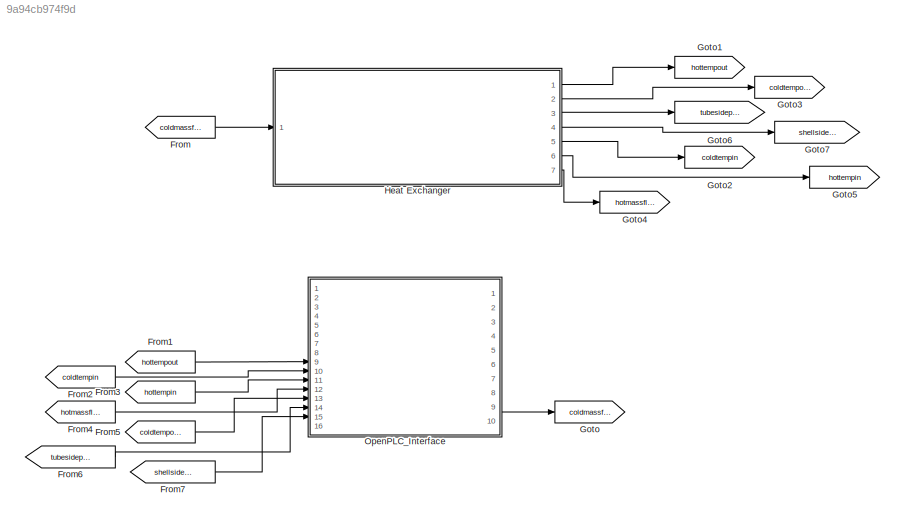
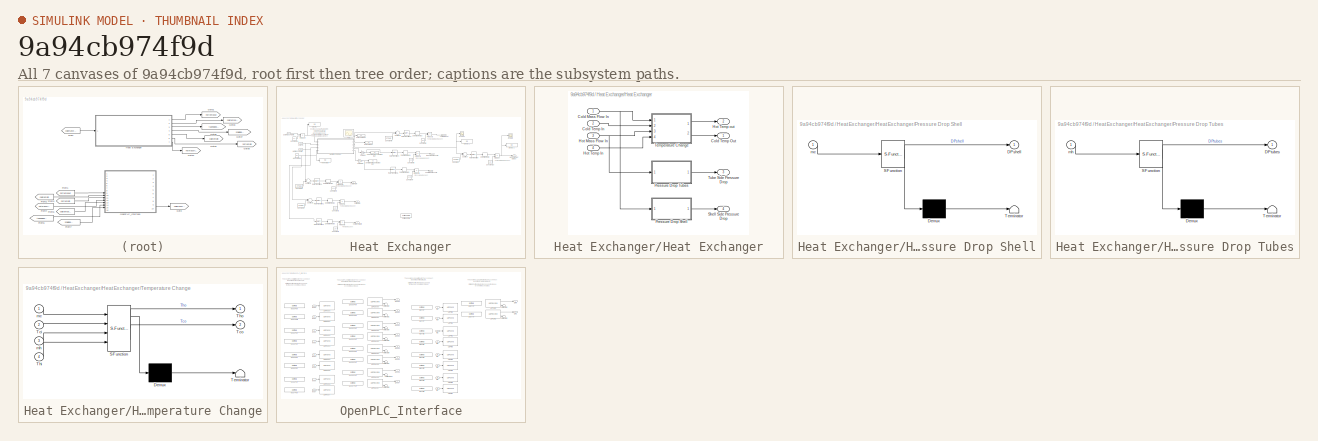
[diagram: thumbnail index - all 7 canvases of the model, root first then tree order]
MODEL slx_9a94cb974f9d
KIND model
CONFIG AbsTol = auto
CONFIG EnableMultiTasking = off
CONFIG FixedStep = auto
CONFIG MaxStep = auto
CONFIG MinStep = auto
CONFIG RelTol = 1e-3
CONFIG SampleTimeConstraint = Unconstrained
CONFIG Solver = FixedStepAuto
CONFIG SolverName = FixedStepAuto
CONFIG StartTime = 0.0
CONFIG StopTime = Inf
WORKSPACE source: mxarray member
WORKSPACE Avg_HI = 400
WORKSPACE PLC_IP_Address = '127.0.0.1'
BLOCK [From] From
  GotoTag = coldmassflow
BLOCK [From] From1
  GotoTag = hottempout
BLOCK [From] From2
  GotoTag = coldtempin
BLOCK [From] From3
  GotoTag = hottempin
BLOCK [From] From4
  GotoTag = hotmassflowin
BLOCK [From] From5
  GotoTag = coldtempout
BLOCK [From] From6
  GotoTag = tubesidepressure
BLOCK [From] From7
  GotoTag = shellsidepressure
BLOCK [Goto] Goto
  GotoTag = coldmassflow
BLOCK [Goto] Goto1
  GotoTag = hottempout
BLOCK [Goto] Goto2
  GotoTag = coldtempin
BLOCK [Goto] Goto3
  GotoTag = coldtempout
BLOCK [Goto] Goto4
  GotoTag = hotmassflowin
BLOCK [Goto] Goto5
  GotoTag = hottempin
BLOCK [Goto] Goto6
  GotoTag = tubesidepressure
BLOCK [Goto] Goto7
  GotoTag = shellsidepressure
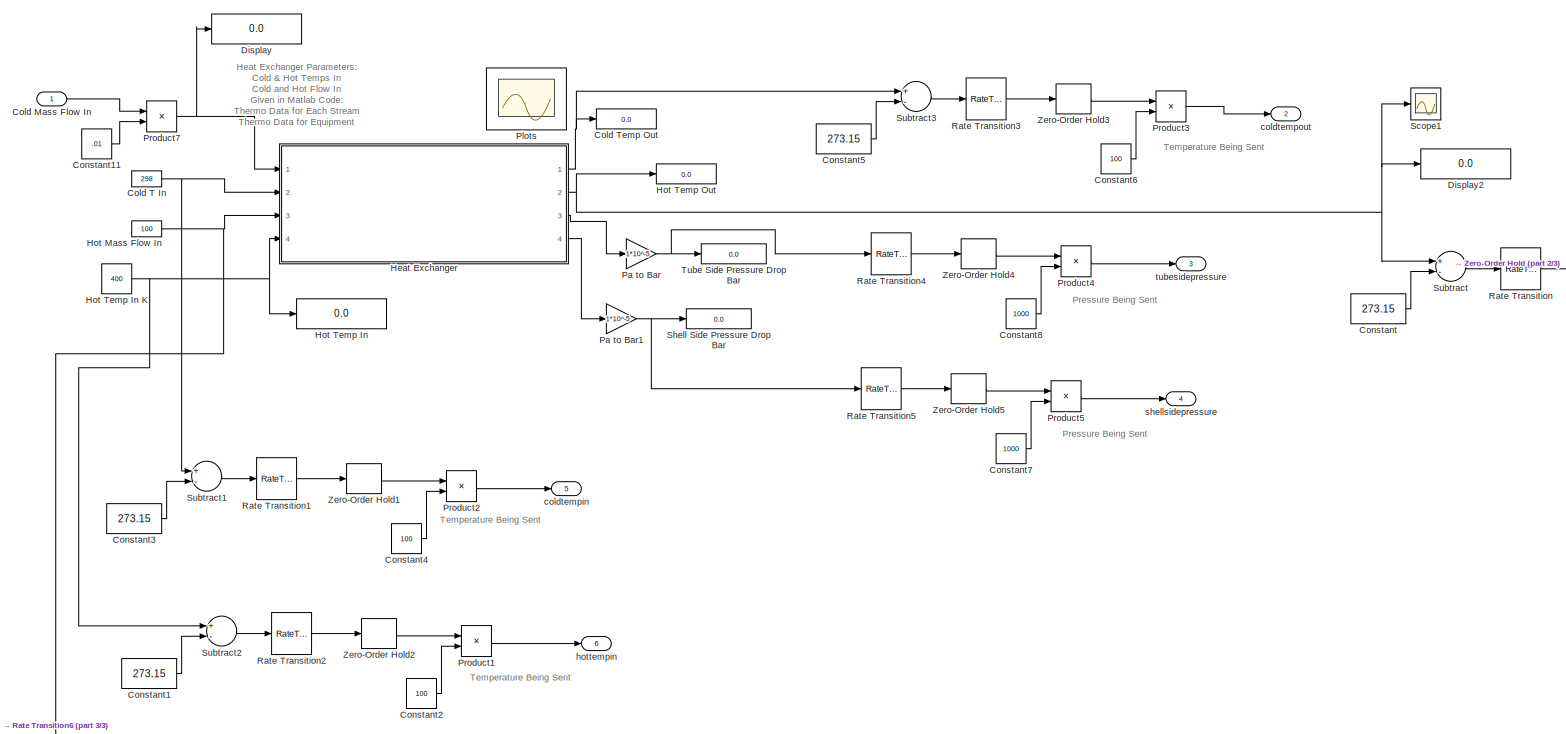
[diagram: Heat Exchanger - part 1/3, most of the canvas]
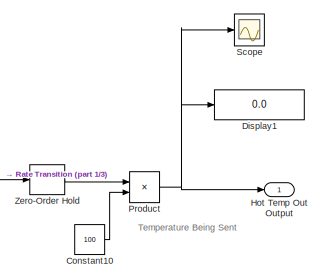
[diagram: Heat Exchanger - part 2/3, top right region]
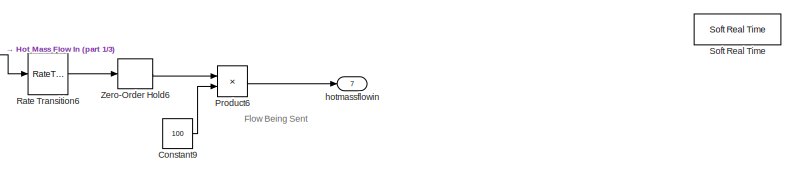
[diagram: Heat Exchanger - part 3/3, bottom center region]
BLOCK [SubSystem] Heat Exchanger
  Ports = [1, 7]
  RequestExecContextInheritance = off
BLOCK [Inport] Heat Exchanger/Cold Mass Flow In
  IconDisplay = Port number
BLOCK [Constant] Heat Exchanger/Cold T In
  Value = 298
BLOCK [Display] Heat Exchanger/Cold Temp Out
  Decimation = 1
  Ports = [1]
BLOCK [Constant] Heat Exchanger/Constant
  Value = 273.15
BLOCK [Constant] Heat Exchanger/Constant1
  Value = 273.15
BLOCK [Constant] Heat Exchanger/Constant10
  Value = 100
BLOCK [Constant] Heat Exchanger/Constant11
  Value = .01
BLOCK [Constant] Heat Exchanger/Constant2
  Value = 100
BLOCK [Constant] Heat Exchanger/Constant3
  Value = 273.15
BLOCK [Constant] Heat Exchanger/Constant4
  Value = 100
BLOCK [Constant] Heat Exchanger/Constant5
  Value = 273.15
BLOCK [Constant] Heat Exchanger/Constant6
  Value = 100
BLOCK [Constant] Heat Exchanger/Constant7
  Value = 1000
BLOCK [Constant] Heat Exchanger/Constant8
  Value = 1000
BLOCK [Constant] Heat Exchanger/Constant9
  Value = 100
BLOCK [Display] Heat Exchanger/Display
  Decimation = 1
  Ports = [1]
BLOCK [Display] Heat Exchanger/Display1
  Decimation = 1
  Ports = [1]
BLOCK [Display] Heat Exchanger/Display2
  Decimation = 1
  Ports = [1]
BLOCK [SubSystem] Heat Exchanger/Heat Exchanger
  Ports = [4, 4]
  RequestExecContextInheritance = off
BLOCK [Inport] Heat Exchanger/Heat Exchanger/Cold Mass Flow In
  IconDisplay = Port number
BLOCK [Inport] Heat Exchanger/Heat Exchanger/Cold Temp In
  IconDisplay = Port number
  Port = 2
BLOCK [Outport] Heat Exchanger/Heat Exchanger/Cold Temp Out
  IconDisplay = Port number
BLOCK [Inport] Heat Exchanger/Heat Exchanger/Hot Mass Flow In
  IconDisplay = Port number
  Port = 3
BLOCK [Inport] Heat Exchanger/Heat Exchanger/Hot Temp In
  IconDisplay = Port number
  Port = 4
BLOCK [Outport] Heat Exchanger/Heat Exchanger/Hot Temp out
  IconDisplay = Port number
  Port = 2
BLOCK [SubSystem] Heat Exchanger/Heat Exchanger/Pressure Drop Shell
  ErrorFcn = Stateflow.Translate.translate
  PermitHierarchicalResolution = ExplicitOnly
  Ports = [1, 1]
  RequestExecContextInheritance = off
  SFBlockType = MATLAB Function
  TreatAsAtomicUnit = on
BLOCK [Demux] Heat Exchanger/Heat Exchanger/Pressure Drop Shell/ Demux 
  Outputs = 1
  Ports = [1, 1]
BLOCK [S-Function] Heat Exchanger/Heat Exchanger/Pressure Drop Shell/ SFunction 
  EnableBusSupport = on
  FunctionName = sf_sfun
  PortCounts = [1 2]
  Ports = [1, 2]
  SFcnIsStateOwnerBlock = off
  SFunctionDeploymentMode = off
  Tag = Stateflow S-Function 3
BLOCK [Terminator] Heat Exchanger/Heat Exchanger/Pressure Drop Shell/ Terminator 
BLOCK [Outport] Heat Exchanger/Heat Exchanger/Pressure Drop Shell/DPshell
  IconDisplay = Port number
BLOCK [Inport] Heat Exchanger/Heat Exchanger/Pressure Drop Shell/mc
  IconDisplay = Port number
BLOCK [SubSystem] Heat Exchanger/Heat Exchanger/Pressure Drop Tubes
  ErrorFcn = Stateflow.Translate.translate
  PermitHierarchicalResolution = ExplicitOnly
  Ports = [1, 1]
  RequestExecContextInheritance = off
  SFBlockType = MATLAB Function
  TreatAsAtomicUnit = on
BLOCK [Demux] Heat Exchanger/Heat Exchanger/Pressure Drop Tubes/ Demux 
  Outputs = 1
  Ports = [1, 1]
BLOCK [S-Function] Heat Exchanger/Heat Exchanger/Pressure Drop Tubes/ SFunction 
  EnableBusSupport = on
  FunctionName = sf_sfun
  PortCounts = [1 2]
  Ports = [1, 2]
  SFcnIsStateOwnerBlock = off
  SFunctionDeploymentMode = off
  Tag = Stateflow S-Function 1
BLOCK [Terminator] Heat Exchanger/Heat Exchanger/Pressure Drop Tubes/ Terminator 
BLOCK [Outport] Heat Exchanger/Heat Exchanger/Pressure Drop Tubes/DPtubes
  IconDisplay = Port number
BLOCK [Inport] Heat Exchanger/Heat Exchanger/Pressure Drop Tubes/mh
  IconDisplay = Port number
BLOCK [Outport] Heat Exchanger/Heat Exchanger/Shell Side Pressure Drop
  IconDisplay = Port number
  Port = 4
BLOCK [SubSystem] Heat Exchanger/Heat Exchanger/Temperature Change
  ErrorFcn = Stateflow.Translate.translate
  PermitHierarchicalResolution = ExplicitOnly
  Ports = [4, 2]
  RequestExecContextInheritance = off
  SFBlockType = MATLAB Function
  TreatAsAtomicUnit = on
BLOCK [Demux] Heat Exchanger/Heat Exchanger/Temperature Change/ Demux 
  Outputs = 1
  Ports = [1, 1]
BLOCK [S-Function] Heat Exchanger/Heat Exchanger/Temperature Change/ SFunction 
  EnableBusSupport = on
  FunctionName = sf_sfun
  PortCounts = [4 3]
  Ports = [4, 3]
  SFcnIsStateOwnerBlock = off
  SFunctionDeploymentMode = off
  Tag = Stateflow S-Function 2
BLOCK [Terminator] Heat Exchanger/Heat Exchanger/Temperature Change/ Terminator 
BLOCK [Inport] Heat Exchanger/Heat Exchanger/Temperature Change/Tci
  IconDisplay = Port number
  Port = 2
BLOCK [Outport] Heat Exchanger/Heat Exchanger/Temperature Change/Tco
  IconDisplay = Port number
  Port = 2
BLOCK [Inport] Heat Exchanger/Heat Exchanger/Temperature Change/Thi
  IconDisplay = Port number
  Port = 4
BLOCK [Outport] Heat Exchanger/Heat Exchanger/Temperature Change/Tho
  IconDisplay = Port number
BLOCK [Inport] Heat Exchanger/Heat Exchanger/Temperature Change/mc
  IconDisplay = Port number
BLOCK [Inport] Heat Exchanger/Heat Exchanger/Temperature Change/mh
  IconDisplay = Port number
  Port = 3
BLOCK [Outport] Heat Exchanger/Heat Exchanger/Tube Side Pressure Drop
  IconDisplay = Port number
  Port = 3
BLOCK [Constant] Heat Exchanger/Hot Mass Flow In
  Value = 100
BLOCK [Display] Heat Exchanger/Hot Temp In
  Decimation = 1
  Ports = [1]
BLOCK [Constant] Heat Exchanger/Hot Temp In K
  Value = 400
BLOCK [Display] Heat Exchanger/Hot Temp Out
  Decimation = 1
  Ports = [1]
BLOCK [Outport] Heat Exchanger/Hot Temp Out Output 
  IconDisplay = Port number
BLOCK [Gain] Heat Exchanger/Pa to Bar
  Gain = 1*10^-5
  OutDataTypeStr = Inherit: Inherit via internal rule
  ParamDataTypeStr = Inherit: Inherit via internal rule
  SaturateOnIntegerOverflow = off
BLOCK [Gain] Heat Exchanger/Pa to Bar1
  Gain = 1*10^-5
  OutDataTypeStr = Inherit: Inherit via internal rule
  ParamDataTypeStr = Inherit: Inherit via internal rule
  SaturateOnIntegerOverflow = off
BLOCK [Scope] Heat Exchanger/Plots
  Floating = on
  NumInputPorts = 1
  Ports = []
  ScopeSpecificationString = Simulink.scopes.TimeScopeBlockCfg('CurrentConfiguration', extmgr.ConfigurationSet(extmgr.Configuration('Core','General UI',true,'FigureColor',[0 0 0]),extmgr.Configuration('Core','Source UI',true),extmgr.Configuration('Sources','WiredSimulink',true,'DataLoggingVariableName','ScopeData1'),extmgr.Configuration('Visuals','Time Domain',true,'PlotType','Stairs','SerializedDisplays',{struct('MinYLimReal...<+4152ch>
BLOCK [Product] Heat Exchanger/Product
  InputSameDT = off
  OutDataTypeStr = Inherit: Inherit via internal rule
  Ports = [2, 1]
  RndMeth = Floor
  SaturateOnIntegerOverflow = off
BLOCK [Product] Heat Exchanger/Product1
  InputSameDT = off
  OutDataTypeStr = Inherit: Inherit via internal rule
  Ports = [2, 1]
  RndMeth = Floor
  SaturateOnIntegerOverflow = off
BLOCK [Product] Heat Exchanger/Product2
  InputSameDT = off
  OutDataTypeStr = Inherit: Inherit via internal rule
  Ports = [2, 1]
  RndMeth = Floor
  SaturateOnIntegerOverflow = off
BLOCK [Product] Heat Exchanger/Product3
  InputSameDT = off
  OutDataTypeStr = Inherit: Inherit via internal rule
  Ports = [2, 1]
  RndMeth = Floor
  SaturateOnIntegerOverflow = off
BLOCK [Product] Heat Exchanger/Product4
  InputSameDT = off
  OutDataTypeStr = Inherit: Inherit via internal rule
  Ports = [2, 1]
  RndMeth = Floor
  SaturateOnIntegerOverflow = off
BLOCK [Product] Heat Exchanger/Product5
  InputSameDT = off
  OutDataTypeStr = Inherit: Inherit via internal rule
  Ports = [2, 1]
  RndMeth = Floor
  SaturateOnIntegerOverflow = off
BLOCK [Product] Heat Exchanger/Product6
  InputSameDT = off
  OutDataTypeStr = Inherit: Inherit via internal rule
  Ports = [2, 1]
  RndMeth = Floor
  SaturateOnIntegerOverflow = off
BLOCK [Product] Heat Exchanger/Product7
  InputSameDT = off
  OutDataTypeStr = Inherit: Inherit via internal rule
  Ports = [2, 1]
  RndMeth = Floor
  SaturateOnIntegerOverflow = off
BLOCK [RateTransition] Heat Exchanger/Rate Transition
BLOCK [RateTransition] Heat Exchanger/Rate Transition1
BLOCK [RateTransition] Heat Exchanger/Rate Transition2
BLOCK [RateTransition] Heat Exchanger/Rate Transition3
BLOCK [RateTransition] Heat Exchanger/Rate Transition4
BLOCK [RateTransition] Heat Exchanger/Rate Transition5
BLOCK [RateTransition] Heat Exchanger/Rate Transition6
BLOCK [Scope] Heat Exchanger/Scope
  Floating = off
  NumInputPorts = 1
  Ports = [1]
  ScopeSpecificationString = Simulink.scopes.TimeScopeBlockCfg('CurrentConfiguration', extmgr.ConfigurationSet(extmgr.Configuration('Core','General UI',true),extmgr.Configuration('Core','Source UI',true),extmgr.Configuration('Sources','WiredSimulink',true,'DataLoggingVariableName','ScopeData1'),extmgr.Configuration('Visuals','Time Domain',true,'SerializedDisplays',{struct('MinYLimReal','2165.04288','MaxYLimReal','5205.0087','...<+1455ch>
BLOCK [Scope] Heat Exchanger/Scope1
  Floating = off
  NumInputPorts = 1
  Ports = [1]
  ScopeSpecificationString = Simulink.scopes.TimeScopeBlockCfg('CurrentConfiguration', extmgr.ConfigurationSet(extmgr.Configuration('Core','General UI',true),extmgr.Configuration('Core','Source UI',true),extmgr.Configuration('Sources','WiredSimulink',true,'DataLoggingVariableName','ScopeData2'),extmgr.Configuration('Visuals','Time Domain',true,'SerializedDisplays',{struct('MinYLimReal','-1092.4539','MaxYLimReal','312.28907','...<+1417ch>
BLOCK [Display] Heat Exchanger/Shell Side Pressure Drop Bar
  Decimation = 1
  Ports = [1]
BLOCK [Reference] Heat Exchanger/Soft Real Time  REF=utility/Soft Real Time  (lib defined in slx_8818c3a16fdf)
  Ports = []
  SourceBlock = utility/Soft Real Time
  SourceProductName = Soft Real Time Lib
BLOCK [Sum] Heat Exchanger/Subtract
  InputSameDT = off
  Inputs = +-
  OutDataTypeStr = Inherit: Inherit via internal rule
  Ports = [2, 1]
  SaturateOnIntegerOverflow = off
BLOCK [Sum] Heat Exchanger/Subtract1
  InputSameDT = off
  Inputs = +-
  OutDataTypeStr = Inherit: Inherit via internal rule
  Ports = [2, 1]
  SaturateOnIntegerOverflow = off
BLOCK [Sum] Heat Exchanger/Subtract2
  InputSameDT = off
  Inputs = +-
  OutDataTypeStr = Inherit: Inherit via internal rule
  Ports = [2, 1]
  SaturateOnIntegerOverflow = off
BLOCK [Sum] Heat Exchanger/Subtract3
  InputSameDT = off
  Inputs = +-
  OutDataTypeStr = Inherit: Inherit via internal rule
  Ports = [2, 1]
  SaturateOnIntegerOverflow = off
BLOCK [Display] Heat Exchanger/Tube Side Pressure Drop Bar
  Decimation = 1
  Ports = [1]
BLOCK [ZeroOrderHold] Heat Exchanger/Zero-Order Hold
  SampleTime = 0.1
BLOCK [ZeroOrderHold] Heat Exchanger/Zero-Order Hold1
  SampleTime = 0.1
BLOCK [ZeroOrderHold] Heat Exchanger/Zero-Order Hold2
  SampleTime = 0.1
BLOCK [ZeroOrderHold] Heat Exchanger/Zero-Order Hold3
  SampleTime = 0.1
BLOCK [ZeroOrderHold] Heat Exchanger/Zero-Order Hold4
  SampleTime = 0.1
BLOCK [ZeroOrderHold] Heat Exchanger/Zero-Order Hold5
  SampleTime = 0.1
BLOCK [ZeroOrderHold] Heat Exchanger/Zero-Order Hold6
  SampleTime = 0.1
BLOCK [Outport] Heat Exchanger/coldtempin
  IconDisplay = Port number
  Port = 5
BLOCK [Outport] Heat Exchanger/coldtempout
  IconDisplay = Port number
  Port = 2
BLOCK [Outport] Heat Exchanger/hotmassflowin 
  IconDisplay = Port number
  Port = 7
BLOCK [Outport] Heat Exchanger/hottempin
  IconDisplay = Port number
  Port = 6
BLOCK [Outport] Heat Exchanger/shellsidepressure
  IconDisplay = Port number
  Port = 4
BLOCK [Outport] Heat Exchanger/tubesidepressure
  IconDisplay = Port number
  Port = 3
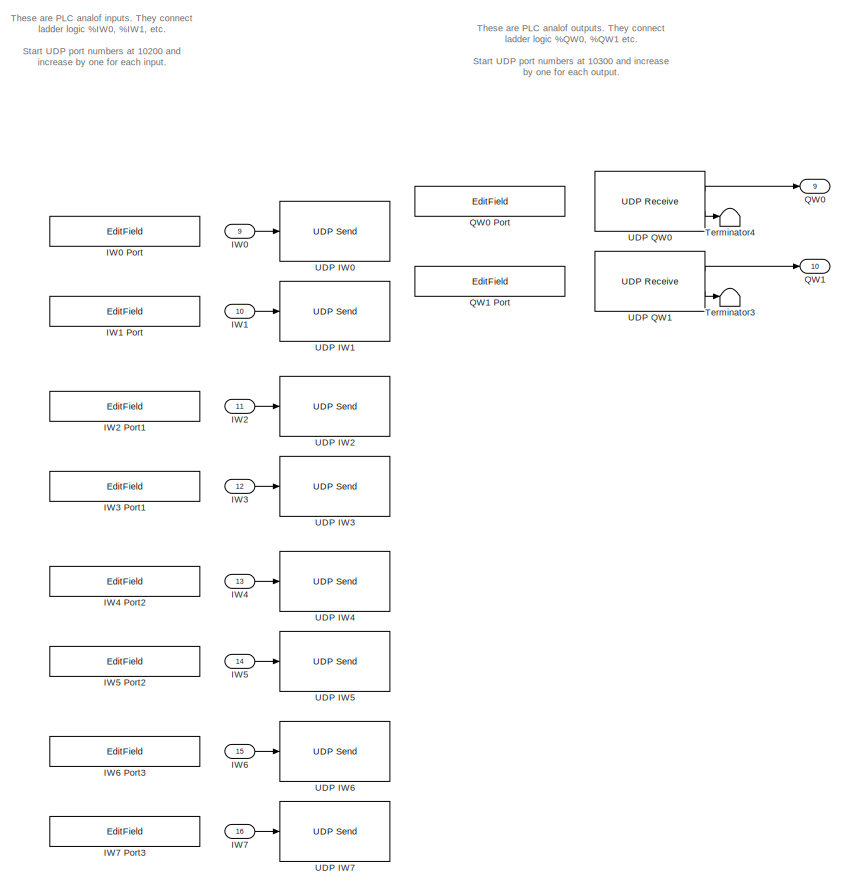
[diagram: OpenPLC_Interface - part 1/2, right side, full height]
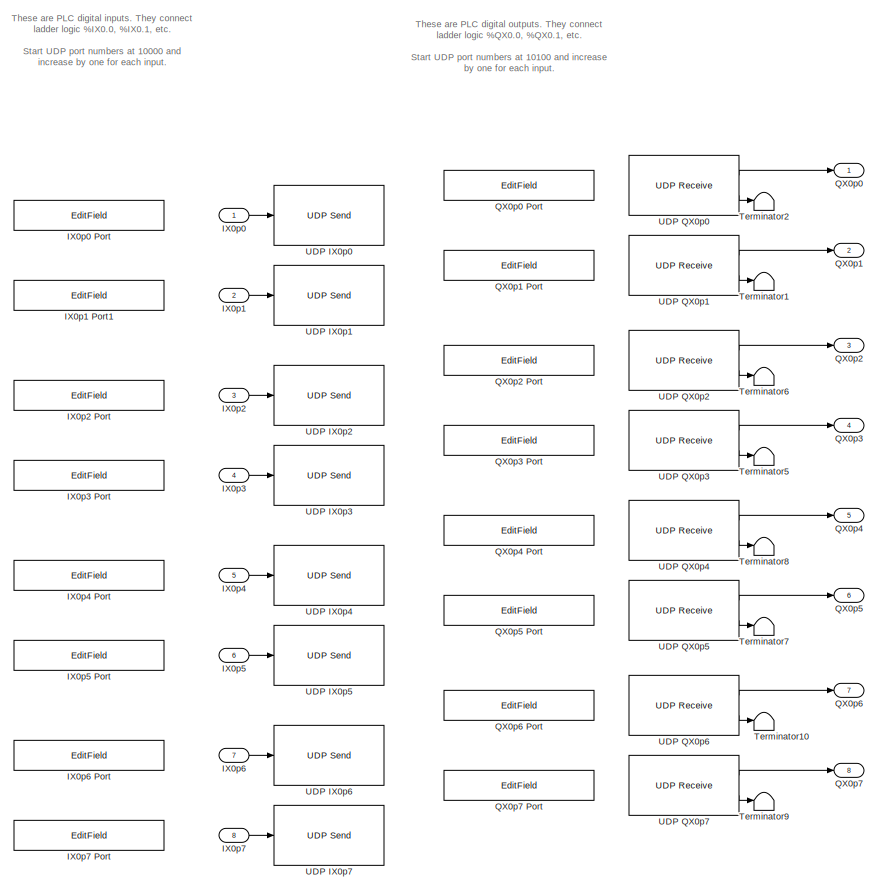
[diagram: OpenPLC_Interface - part 2/2, left side, full height]
BLOCK [SubSystem] OpenPLC_Interface
  Ports = [16, 10]
  RequestExecContextInheritance = off
BLOCK [Inport] OpenPLC_Interface/IW0
  IconDisplay = Port number
  Port = 9
BLOCK [EditField] OpenPLC_Interface/IW0 Port
  Alignment = Center
  LabelPosition = Hide
  ShowInitialText = on
BLOCK [Inport] OpenPLC_Interface/IW1
  IconDisplay = Port number
  Port = 10
BLOCK [EditField] OpenPLC_Interface/IW1 Port
  Alignment = Center
  LabelPosition = Hide
  ShowInitialText = on
BLOCK [Inport] OpenPLC_Interface/IW2
  IconDisplay = Port number
  Port = 11
BLOCK [EditField] OpenPLC_Interface/IW2 Port1
  Alignment = Center
  LabelPosition = Hide
  ShowInitialText = on
BLOCK [Inport] OpenPLC_Interface/IW3
  IconDisplay = Port number
  Port = 12
BLOCK [EditField] OpenPLC_Interface/IW3 Port1
  Alignment = Center
  LabelPosition = Hide
  ShowInitialText = on
BLOCK [Inport] OpenPLC_Interface/IW4
  IconDisplay = Port number
  Port = 13
BLOCK [EditField] OpenPLC_Interface/IW4 Port2
  Alignment = Center
  LabelPosition = Hide
  ShowInitialText = on
BLOCK [Inport] OpenPLC_Interface/IW5
  IconDisplay = Port number
  Port = 14
BLOCK [EditField] OpenPLC_Interface/IW5 Port2
  Alignment = Center
  LabelPosition = Hide
  ShowInitialText = on
BLOCK [Inport] OpenPLC_Interface/IW6
  IconDisplay = Port number
  Port = 15
BLOCK [EditField] OpenPLC_Interface/IW6 Port3
  Alignment = Center
  LabelPosition = Hide
  ShowInitialText = on
BLOCK [Inport] OpenPLC_Interface/IW7
  IconDisplay = Port number
  Port = 16
BLOCK [EditField] OpenPLC_Interface/IW7 Port3
  Alignment = Center
  LabelPosition = Hide
  ShowInitialText = on
BLOCK [Inport] OpenPLC_Interface/IX0p0 
  IconDisplay = Port number
BLOCK [EditField] OpenPLC_Interface/IX0p0 Port
  Alignment = Center
  LabelPosition = Hide
  ShowInitialText = on
BLOCK [Inport] OpenPLC_Interface/IX0p1
  IconDisplay = Port number
  Port = 2
BLOCK [EditField] OpenPLC_Interface/IX0p1 Port1
  Alignment = Center
  LabelPosition = Hide
  ShowInitialText = on
BLOCK [Inport] OpenPLC_Interface/IX0p2
  IconDisplay = Port number
  Port = 3
BLOCK [EditField] OpenPLC_Interface/IX0p2 Port
  Alignment = Center
  LabelPosition = Hide
  ShowInitialText = on
BLOCK [Inport] OpenPLC_Interface/IX0p3
  IconDisplay = Port number
  Port = 4
BLOCK [EditField] OpenPLC_Interface/IX0p3 Port
  Alignment = Center
  LabelPosition = Hide
  ShowInitialText = on
BLOCK [Inport] OpenPLC_Interface/IX0p4
  IconDisplay = Port number
  Port = 5
BLOCK [EditField] OpenPLC_Interface/IX0p4 Port
  Alignment = Center
  LabelPosition = Hide
  ShowInitialText = on
BLOCK [Inport] OpenPLC_Interface/IX0p5
  IconDisplay = Port number
  Port = 6
BLOCK [EditField] OpenPLC_Interface/IX0p5 Port
  Alignment = Center
  LabelPosition = Hide
  ShowInitialText = on
BLOCK [Inport] OpenPLC_Interface/IX0p6
  IconDisplay = Port number
  Port = 7
BLOCK [EditField] OpenPLC_Interface/IX0p6 Port
  Alignment = Center
  LabelPosition = Hide
  ShowInitialText = on
BLOCK [Inport] OpenPLC_Interface/IX0p7
  IconDisplay = Port number
  Port = 8
BLOCK [EditField] OpenPLC_Interface/IX0p7 Port
  Alignment = Center
  LabelPosition = Hide
  ShowInitialText = on
BLOCK [Outport] OpenPLC_Interface/QW0
  IconDisplay = Port number
  Port = 9
BLOCK [EditField] OpenPLC_Interface/QW0 Port
  Alignment = Center
  LabelPosition = Hide
  ShowInitialText = on
BLOCK [Outport] OpenPLC_Interface/QW1
  IconDisplay = Port number
  Port = 10
BLOCK [EditField] OpenPLC_Interface/QW1 Port
  Alignment = Center
  LabelPosition = Hide
  ShowInitialText = on
BLOCK [Outport] OpenPLC_Interface/QX0p0
  IconDisplay = Port number
BLOCK [EditField] OpenPLC_Interface/QX0p0 Port
  Alignment = Center
  LabelPosition = Hide
  ShowInitialText = on
BLOCK [Outport] OpenPLC_Interface/QX0p1
  IconDisplay = Port number
  Port = 2
BLOCK [EditField] OpenPLC_Interface/QX0p1 Port
  Alignment = Center
  LabelPosition = Hide
  ShowInitialText = on
BLOCK [Outport] OpenPLC_Interface/QX0p2
  IconDisplay = Port number
  Port = 3
BLOCK [EditField] OpenPLC_Interface/QX0p2 Port
  Alignment = Center
  LabelPosition = Hide
  ShowInitialText = on
BLOCK [Outport] OpenPLC_Interface/QX0p3
  IconDisplay = Port number
  Port = 4
BLOCK [EditField] OpenPLC_Interface/QX0p3 Port
  Alignment = Center
  LabelPosition = Hide
  ShowInitialText = on
BLOCK [Outport] OpenPLC_Interface/QX0p4
  IconDisplay = Port number
  Port = 5
BLOCK [EditField] OpenPLC_Interface/QX0p4 Port
  Alignment = Center
  LabelPosition = Hide
  ShowInitialText = on
BLOCK [Outport] OpenPLC_Interface/QX0p5
  IconDisplay = Port number
  Port = 6
BLOCK [EditField] OpenPLC_Interface/QX0p5 Port
  Alignment = Center
  LabelPosition = Hide
  ShowInitialText = on
BLOCK [Outport] OpenPLC_Interface/QX0p6
  IconDisplay = Port number
  Port = 7
BLOCK [EditField] OpenPLC_Interface/QX0p6 Port
  Alignment = Center
  LabelPosition = Hide
  ShowInitialText = on
BLOCK [Outport] OpenPLC_Interface/QX0p7
  IconDisplay = Port number
  Port = 8
BLOCK [EditField] OpenPLC_Interface/QX0p7 Port
  Alignment = Center
  LabelPosition = Hide
  ShowInitialText = on
BLOCK [Terminator] OpenPLC_Interface/Terminator1
BLOCK [Terminator] OpenPLC_Interface/Terminator10
BLOCK [Terminator] OpenPLC_Interface/Terminator2
BLOCK [Terminator] OpenPLC_Interface/Terminator3
BLOCK [Terminator] OpenPLC_Interface/Terminator4
BLOCK [Terminator] OpenPLC_Interface/Terminator5
BLOCK [Terminator] OpenPLC_Interface/Terminator6
BLOCK [Terminator] OpenPLC_Interface/Terminator7
BLOCK [Terminator] OpenPLC_Interface/Terminator8
BLOCK [Terminator] OpenPLC_Interface/Terminator9
BLOCK [Reference] OpenPLC_Interface/UDP IW0  REF=dspnetwork/UDP Send
  Ports = [1]
  SourceBlock = dspnetwork/UDP Send
  SourceProductBaseCode = DS
  SourceProductName = DSP System Toolbox
  SourceType = UDP Send
BLOCK [Reference] OpenPLC_Interface/UDP IW1  REF=dspnetwork/UDP Send
  Ports = [1]
  SourceBlock = dspnetwork/UDP Send
  SourceProductBaseCode = DS
  SourceProductName = DSP System Toolbox
  SourceType = UDP Send
BLOCK [Reference] OpenPLC_Interface/UDP IW2  REF=dspnetwork/UDP Send
  Ports = [1]
  SourceBlock = dspnetwork/UDP Send
  SourceProductBaseCode = DS
  SourceProductName = DSP System Toolbox
  SourceType = UDP Send
BLOCK [Reference] OpenPLC_Interface/UDP IW3  REF=dspnetwork/UDP Send
  Ports = [1]
  SourceBlock = dspnetwork/UDP Send
  SourceProductBaseCode = DS
  SourceProductName = DSP System Toolbox
  SourceType = UDP Send
BLOCK [Reference] OpenPLC_Interface/UDP IW4  REF=dspnetwork/UDP Send
  Ports = [1]
  SourceBlock = dspnetwork/UDP Send
  SourceProductBaseCode = DS
  SourceProductName = DSP System Toolbox
  SourceType = UDP Send
BLOCK [Reference] OpenPLC_Interface/UDP IW5  REF=dspnetwork/UDP Send
  Ports = [1]
  SourceBlock = dspnetwork/UDP Send
  SourceProductBaseCode = DS
  SourceProductName = DSP System Toolbox
  SourceType = UDP Send
BLOCK [Reference] OpenPLC_Interface/UDP IW6  REF=dspnetwork/UDP Send
  Ports = [1]
  SourceBlock = dspnetwork/UDP Send
  SourceProductBaseCode = DS
  SourceProductName = DSP System Toolbox
  SourceType = UDP Send
BLOCK [Reference] OpenPLC_Interface/UDP IW7  REF=dspnetwork/UDP Send
  Ports = [1]
  SourceBlock = dspnetwork/UDP Send
  SourceProductBaseCode = DS
  SourceProductName = DSP System Toolbox
  SourceType = UDP Send
BLOCK [Reference] OpenPLC_Interface/UDP IX0p0  REF=dspnetwork/UDP Send
  Ports = [1]
  SourceBlock = dspnetwork/UDP Send
  SourceProductBaseCode = DS
  SourceProductName = DSP System Toolbox
  SourceType = UDP Send
BLOCK [Reference] OpenPLC_Interface/UDP IX0p1  REF=dspnetwork/UDP Send
  Ports = [1]
  SourceBlock = dspnetwork/UDP Send
  SourceProductBaseCode = DS
  SourceProductName = DSP System Toolbox
  SourceType = UDP Send
BLOCK [Reference] OpenPLC_Interface/UDP IX0p2  REF=dspnetwork/UDP Send
  Ports = [1]
  SourceBlock = dspnetwork/UDP Send
  SourceProductBaseCode = DS
  SourceProductName = DSP System Toolbox
  SourceType = UDP Send
BLOCK [Reference] OpenPLC_Interface/UDP IX0p3  REF=dspnetwork/UDP Send
  Ports = [1]
  SourceBlock = dspnetwork/UDP Send
  SourceProductBaseCode = DS
  SourceProductName = DSP System Toolbox
  SourceType = UDP Send
BLOCK [Reference] OpenPLC_Interface/UDP IX0p4  REF=dspnetwork/UDP Send
  Ports = [1]
  SourceBlock = dspnetwork/UDP Send
  SourceProductBaseCode = DS
  SourceProductName = DSP System Toolbox
  SourceType = UDP Send
BLOCK [Reference] OpenPLC_Interface/UDP IX0p5  REF=dspnetwork/UDP Send
  Ports = [1]
  SourceBlock = dspnetwork/UDP Send
  SourceProductBaseCode = DS
  SourceProductName = DSP System Toolbox
  SourceType = UDP Send
BLOCK [Reference] OpenPLC_Interface/UDP IX0p6  REF=dspnetwork/UDP Send
  Ports = [1]
  SourceBlock = dspnetwork/UDP Send
  SourceProductBaseCode = DS
  SourceProductName = DSP System Toolbox
  SourceType = UDP Send
BLOCK [Reference] OpenPLC_Interface/UDP IX0p7  REF=dspnetwork/UDP Send
  Ports = [1]
  SourceBlock = dspnetwork/UDP Send
  SourceProductBaseCode = DS
  SourceProductName = DSP System Toolbox
  SourceType = UDP Send
BLOCK [Reference] OpenPLC_Interface/UDP QW0  REF=dspnetwork/UDP Receive
  Ports = [0, 2]
  SourceBlock = dspnetwork/UDP Receive
  SourceProductBaseCode = DS
  SourceProductName = DSP System Toolbox
  SourceType = UDP Receive
BLOCK [Reference] OpenPLC_Interface/UDP QW1  REF=dspnetwork/UDP Receive
  Ports = [0, 2]
  SourceBlock = dspnetwork/UDP Receive
  SourceProductBaseCode = DS
  SourceProductName = DSP System Toolbox
  SourceType = UDP Receive
BLOCK [Reference] OpenPLC_Interface/UDP QX0p0  REF=dspnetwork/UDP Receive
  Ports = [0, 2]
  SourceBlock = dspnetwork/UDP Receive
  SourceProductBaseCode = DS
  SourceProductName = DSP System Toolbox
  SourceType = UDP Receive
BLOCK [Reference] OpenPLC_Interface/UDP QX0p1  REF=dspnetwork/UDP Receive
  Ports = [0, 2]
  SourceBlock = dspnetwork/UDP Receive
  SourceProductBaseCode = DS
  SourceProductName = DSP System Toolbox
  SourceType = UDP Receive
BLOCK [Reference] OpenPLC_Interface/UDP QX0p2  REF=dspnetwork/UDP Receive
  Ports = [0, 2]
  SourceBlock = dspnetwork/UDP Receive
  SourceProductBaseCode = DS
  SourceProductName = DSP System Toolbox
  SourceType = UDP Receive
BLOCK [Reference] OpenPLC_Interface/UDP QX0p3  REF=dspnetwork/UDP Receive
  Ports = [0, 2]
  SourceBlock = dspnetwork/UDP Receive
  SourceProductBaseCode = DS
  SourceProductName = DSP System Toolbox
  SourceType = UDP Receive
BLOCK [Reference] OpenPLC_Interface/UDP QX0p4  REF=dspnetwork/UDP Receive
  Ports = [0, 2]
  SourceBlock = dspnetwork/UDP Receive
  SourceProductBaseCode = DS
  SourceProductName = DSP System Toolbox
  SourceType = UDP Receive
BLOCK [Reference] OpenPLC_Interface/UDP QX0p5  REF=dspnetwork/UDP Receive
  Ports = [0, 2]
  SourceBlock = dspnetwork/UDP Receive
  SourceProductBaseCode = DS
  SourceProductName = DSP System Toolbox
  SourceType = UDP Receive
BLOCK [Reference] OpenPLC_Interface/UDP QX0p6  REF=dspnetwork/UDP Receive
  Ports = [0, 2]
  SourceBlock = dspnetwork/UDP Receive
  SourceProductBaseCode = DS
  SourceProductName = DSP System Toolbox
  SourceType = UDP Receive
BLOCK [Reference] OpenPLC_Interface/UDP QX0p7  REF=dspnetwork/UDP Receive
  Ports = [0, 2]
  SourceBlock = dspnetwork/UDP Receive
  SourceProductBaseCode = DS
  SourceProductName = DSP System Toolbox
  SourceType = UDP Receive
ANNOTATION Heat Exchanger: Flow Being Sent
ANNOTATION Heat Exchanger: Pressure Being Sent
ANNOTATION Heat Exchanger: Temperature Being Sent
ANNOTATION Heat Exchanger: Heat Exchanger Parameters: Cold & Hot Temps In Cold and Hot Flow In Given in Matlab Code: Thermo Data for Each Stream Thermo Data for Equipment
ANNOTATION OpenPLC_Interface: These are PLC analof inputs. They connect ladder logic %IW0, %IW1, etc. Start UDP port numbers at 10200 and increase by one for each input. Update model variable PLC_IP_Address to set PLC ip address.
ANNOTATION OpenPLC_Interface: These are PLC analof outputs. They connect ladder logic %QW0, %QW1 etc. Start UDP port numbers at 10300 and increase by one for each output.
ANNOTATION OpenPLC_Interface: These are PLC digital inputs. They connect ladder logic %IX0.0, %IX0.1, etc. Start UDP port numbers at 10000 and increase by one for each input. Update model variable PLC_IP_Address to set PLC ip address.
ANNOTATION OpenPLC_Interface: These are PLC digital outputs. They connect ladder logic %QX0.0, %QX0.1, etc. Start UDP port numbers at 10100 and increase by one for each input.
LINE From1:1 -> OpenPLC_Interface:9
LINE From2:1 -> OpenPLC_Interface:10
LINE From3:1 -> OpenPLC_Interface:11
LINE From4:1 -> OpenPLC_Interface:12
LINE From5:1 -> OpenPLC_Interface:13
LINE From6:1 -> OpenPLC_Interface:14
LINE From7:1 -> OpenPLC_Interface:15
LINE From:1 -> Heat Exchanger:1
LINE Heat Exchanger/Cold Mass Flow In:1 -> Heat Exchanger/Product7:1
NET Heat Exchanger/Cold T In:1 -> Heat Exchanger/Heat Exchanger:2, Heat Exchanger/Subtract1:1
LINE Heat Exchanger/Constant10:1 -> Heat Exchanger/Product:2
LINE Heat Exchanger/Constant11:1 -> Heat Exchanger/Product7:2
LINE Heat Exchanger/Constant1:1 -> Heat Exchanger/Subtract2:2
LINE Heat Exchanger/Constant2:1 -> Heat Exchanger/Product1:2
LINE Heat Exchanger/Constant3:1 -> Heat Exchanger/Subtract1:2
LINE Heat Exchanger/Constant4:1 -> Heat Exchanger/Product2:2
LINE Heat Exchanger/Constant5:1 -> Heat Exchanger/Subtract3:2
LINE Heat Exchanger/Constant6:1 -> Heat Exchanger/Product3:2
LINE Heat Exchanger/Constant7:1 -> Heat Exchanger/Product5:2
LINE Heat Exchanger/Constant8:1 -> Heat Exchanger/Product4:2
LINE Heat Exchanger/Constant9:1 -> Heat Exchanger/Product6:2
LINE Heat Exchanger/Constant:1 -> Heat Exchanger/Subtract:2
NET Heat Exchanger/Heat Exchanger/Cold Mass Flow In:1 -> Heat Exchanger/Heat Exchanger/Pressure Drop Shell:1, Heat Exchanger/Heat Exchanger/Temperature Change:1
LINE Heat Exchanger/Heat Exchanger/Cold Temp In:1 -> Heat Exchanger/Heat Exchanger/Temperature Change:2
NET Heat Exchanger/Heat Exchanger/Hot Mass Flow In:1 -> Heat Exchanger/Heat Exchanger/Pressure Drop Tubes:1, Heat Exchanger/Heat Exchanger/Temperature Change:3
LINE Heat Exchanger/Heat Exchanger/Hot Temp In:1 -> Heat Exchanger/Heat Exchanger/Temperature Change:4
LINE Heat Exchanger/Heat Exchanger/Pressure Drop Shell:1 -> Heat Exchanger/Heat Exchanger/Shell Side Pressure Drop:1
LINE Heat Exchanger/Heat Exchanger/Pressure Drop Tubes:1 -> Heat Exchanger/Heat Exchanger/Tube Side Pressure Drop:1
LINE Heat Exchanger/Heat Exchanger/Temperature Change:1 -> Heat Exchanger/Heat Exchanger/Hot Temp out:1
LINE Heat Exchanger/Heat Exchanger/Temperature Change:2 -> Heat Exchanger/Heat Exchanger/Cold Temp Out:1
NET Heat Exchanger/Heat Exchanger:1 -> Heat Exchanger/Cold Temp Out:1, Heat Exchanger/Subtract3:1
NET Heat Exchanger/Heat Exchanger:2 -> Heat Exchanger/Display2:1, Heat Exchanger/Hot Temp Out:1, Heat Exchanger/Scope1:1, Heat Exchanger/Subtract:1
LINE Heat Exchanger/Heat Exchanger:3 -> Heat Exchanger/Pa to Bar:1
LINE Heat Exchanger/Heat Exchanger:4 -> Heat Exchanger/Pa to Bar1:1
NET Heat Exchanger/Hot Mass Flow In:1 -> Heat Exchanger/Heat Exchanger:3, Heat Exchanger/Rate Transition6:1
NET Heat Exchanger/Hot Temp In K:1 -> Heat Exchanger/Heat Exchanger:4, Heat Exchanger/Hot Temp In:1, Heat Exchanger/Subtract2:1
NET Heat Exchanger/Pa to Bar1:1 -> Heat Exchanger/Rate Transition5:1, Heat Exchanger/Shell Side Pressure Drop Bar:1
NET Heat Exchanger/Pa to Bar:1 -> Heat Exchanger/Rate Transition4:1, Heat Exchanger/Tube Side Pressure Drop Bar:1
LINE Heat Exchanger/Product1:1 -> Heat Exchanger/hottempin:1
LINE Heat Exchanger/Product2:1 -> Heat Exchanger/coldtempin:1
LINE Heat Exchanger/Product3:1 -> Heat Exchanger/coldtempout:1
LINE Heat Exchanger/Product4:1 -> Heat Exchanger/tubesidepressure:1
LINE Heat Exchanger/Product5:1 -> Heat Exchanger/shellsidepressure:1
LINE Heat Exchanger/Product6:1 -> Heat Exchanger/hotmassflowin :1
NET Heat Exchanger/Product7:1 -> Heat Exchanger/Display:1, Heat Exchanger/Heat Exchanger:1
NET Heat Exchanger/Product:1 -> Heat Exchanger/Display1:1, Heat Exchanger/Hot Temp Out Output :1, Heat Exchanger/Scope:1
LINE Heat Exchanger/Rate Transition1:1 -> Heat Exchanger/Zero-Order Hold1:1
LINE Heat Exchanger/Rate Transition2:1 -> Heat Exchanger/Zero-Order Hold2:1
LINE Heat Exchanger/Rate Transition3:1 -> Heat Exchanger/Zero-Order Hold3:1
LINE Heat Exchanger/Rate Transition4:1 -> Heat Exchanger/Zero-Order Hold4:1
LINE Heat Exchanger/Rate Transition5:1 -> Heat Exchanger/Zero-Order Hold5:1
LINE Heat Exchanger/Rate Transition6:1 -> Heat Exchanger/Zero-Order Hold6:1
LINE Heat Exchanger/Rate Transition:1 -> Heat Exchanger/Zero-Order Hold:1
LINE Heat Exchanger/Subtract1:1 -> Heat Exchanger/Rate Transition1:1
LINE Heat Exchanger/Subtract2:1 -> Heat Exchanger/Rate Transition2:1
LINE Heat Exchanger/Subtract3:1 -> Heat Exchanger/Rate Transition3:1
LINE Heat Exchanger/Subtract:1 -> Heat Exchanger/Rate Transition:1
LINE Heat Exchanger/Zero-Order Hold1:1 -> Heat Exchanger/Product2:1
LINE Heat Exchanger/Zero-Order Hold2:1 -> Heat Exchanger/Product1:1
LINE Heat Exchanger/Zero-Order Hold3:1 -> Heat Exchanger/Product3:1
LINE Heat Exchanger/Zero-Order Hold4:1 -> Heat Exchanger/Product4:1
LINE Heat Exchanger/Zero-Order Hold5:1 -> Heat Exchanger/Product5:1
LINE Heat Exchanger/Zero-Order Hold6:1 -> Heat Exchanger/Product6:1
LINE Heat Exchanger/Zero-Order Hold:1 -> Heat Exchanger/Product:1
LINE Heat Exchanger:1 -> Goto1:1
LINE Heat Exchanger:2 -> Goto3:1
LINE Heat Exchanger:3 -> Goto6:1
LINE Heat Exchanger:4 -> Goto7:1
LINE Heat Exchanger:5 -> Goto2:1
LINE Heat Exchanger:6 -> Goto5:1
LINE Heat Exchanger:7 -> Goto4:1
LINE OpenPLC_Interface/IW0:1 -> OpenPLC_Interface/UDP IW0:1
LINE OpenPLC_Interface/IW1:1 -> OpenPLC_Interface/UDP IW1:1
LINE OpenPLC_Interface/IW2:1 -> OpenPLC_Interface/UDP IW2:1
LINE OpenPLC_Interface/IW3:1 -> OpenPLC_Interface/UDP IW3:1
LINE OpenPLC_Interface/IW4:1 -> OpenPLC_Interface/UDP IW4:1
LINE OpenPLC_Interface/IW5:1 -> OpenPLC_Interface/UDP IW5:1
LINE OpenPLC_Interface/IW6:1 -> OpenPLC_Interface/UDP IW6:1
LINE OpenPLC_Interface/IW7:1 -> OpenPLC_Interface/UDP IW7:1
LINE OpenPLC_Interface/IX0p0 :1 -> OpenPLC_Interface/UDP IX0p0:1
LINE OpenPLC_Interface/IX0p1:1 -> OpenPLC_Interface/UDP IX0p1:1
LINE OpenPLC_Interface/IX0p2:1 -> OpenPLC_Interface/UDP IX0p2:1
LINE OpenPLC_Interface/IX0p3:1 -> OpenPLC_Interface/UDP IX0p3:1
LINE OpenPLC_Interface/IX0p4:1 -> OpenPLC_Interface/UDP IX0p4:1
LINE OpenPLC_Interface/IX0p5:1 -> OpenPLC_Interface/UDP IX0p5:1
LINE OpenPLC_Interface/IX0p6:1 -> OpenPLC_Interface/UDP IX0p6:1
LINE OpenPLC_Interface/IX0p7:1 -> OpenPLC_Interface/UDP IX0p7:1
LINE OpenPLC_Interface/UDP QW0:1 -> OpenPLC_Interface/QW0:1
LINE OpenPLC_Interface/UDP QW0:2 -> OpenPLC_Interface/Terminator4:1
LINE OpenPLC_Interface/UDP QW1:1 -> OpenPLC_Interface/QW1:1
LINE OpenPLC_Interface/UDP QW1:2 -> OpenPLC_Interface/Terminator3:1
LINE OpenPLC_Interface/UDP QX0p0:1 -> OpenPLC_Interface/QX0p0:1
LINE OpenPLC_Interface/UDP QX0p0:2 -> OpenPLC_Interface/Terminator2:1
LINE OpenPLC_Interface/UDP QX0p1:1 -> OpenPLC_Interface/QX0p1:1
LINE OpenPLC_Interface/UDP QX0p1:2 -> OpenPLC_Interface/Terminator1:1
LINE OpenPLC_Interface/UDP QX0p2:1 -> OpenPLC_Interface/QX0p2:1
LINE OpenPLC_Interface/UDP QX0p2:2 -> OpenPLC_Interface/Terminator6:1
LINE OpenPLC_Interface/UDP QX0p3:1 -> OpenPLC_Interface/QX0p3:1
LINE OpenPLC_Interface/UDP QX0p3:2 -> OpenPLC_Interface/Terminator5:1
LINE OpenPLC_Interface/UDP QX0p4:1 -> OpenPLC_Interface/QX0p4:1
LINE OpenPLC_Interface/UDP QX0p4:2 -> OpenPLC_Interface/Terminator8:1
LINE OpenPLC_Interface/UDP QX0p5:1 -> OpenPLC_Interface/QX0p5:1
LINE OpenPLC_Interface/UDP QX0p5:2 -> OpenPLC_Interface/Terminator7:1
LINE OpenPLC_Interface/UDP QX0p6:1 -> OpenPLC_Interface/QX0p6:1
LINE OpenPLC_Interface/UDP QX0p6:2 -> OpenPLC_Interface/Terminator10:1
LINE OpenPLC_Interface/UDP QX0p7:1 -> OpenPLC_Interface/QX0p7:1
LINE OpenPLC_Interface/UDP QX0p7:2 -> OpenPLC_Interface/Terminator9:1
LINE OpenPLC_Interface:9 -> Goto:1
note: NET lines group one-source signal fan-out (src -> all destinations, sorted); 1:1 wires keep LINE
CHART Heat Exchanger/Heat Exchanger/Pressure Drop Tubes states=1 transitions=1
  STATE_LABEL 'eML_blk_kernel()'
  STATE_LABEL 'SCRIPT:\nfunction DPtubes = fcn(mh)\n\ndensityh=719.15;%kg/m^3\nf=0.05;\nL=10.9728; %meters\ntwall=0.0021082;%m\nDo=0.028575;%m\nDi=(Do-2*twall);\nv=((mh/densityh)/24)/(3.14159*(Do-2*twall)^2/4); %Average velocity\nDPtubes=f*densityh*v*L/(2*Di);\n\nDPtubes;\nend\n\n'
CHART Heat Exchanger/Heat Exchanger/Temperature Change states=1 transitions=1
  STATE_LABEL 'eML_blk_kernel()'
  STATE_LABEL 'SCRIPT:\nfunction [Tho, Tco]= fcn(mc,Tci,mh,Thi)\n    %{\n    function Tho = solve(Thi, Tci, Cph, Cpc, mh, mc, A, U) %Generates the output temp of hot stream\n       Tho=0;\n       n=10*(Thi-Tci)-1;\n       for i=0:0.1:n %Iteratively solve for Temperature\n           T=Thi-.1*i;\n           %Equation to solve for Thi given a "Try Value"\n           Tco=((mh*Cph)/(mc*Cpc))*(Thi-T)+Tci;\n           DTlm=((T-T...<+3310ch>'
CHART Heat Exchanger/Heat Exchanger/Pressure Drop Shell states=1 transitions=1
  STATE_LABEL 'eML_blk_kernel()'
  STATE_LABEL 'SCRIPT:\nfunction DPshell = fcn(mc)\nDh=0.028575;%m\nntubes=24;\nmuc=0.6184*10^-3;%Pa*s\nDc=0.375;%m\nkc=0.107;%W/m*K\ntwall=0.0021082;%m\ndensityc=919;%kg/m^3\nnditc=0.4;%Dittus-Boelter Correlation Power Constant\npt=0.03175; %m\nDotl=Dh*(ntubes/0.319)^(1/2.142);\nLb=0.4*Dc;\nSm=Lb*(Dc-Dotl*((Dotl-Dh)/pt)*(pt-Dh));\nVc=mc/densityc;\nvc=Vc/Sm;\nRec=densityc*vc*Dc/muc; %Reynolhc number\nLs=10.9728; %meters\nLbb=0.2*...<+595ch>'
